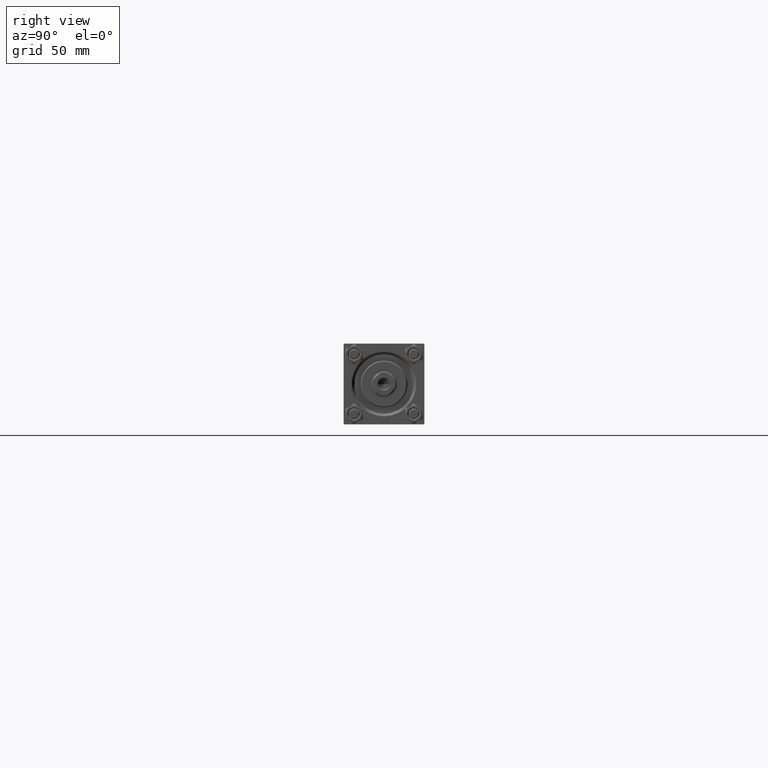
[diagram: clean part render]
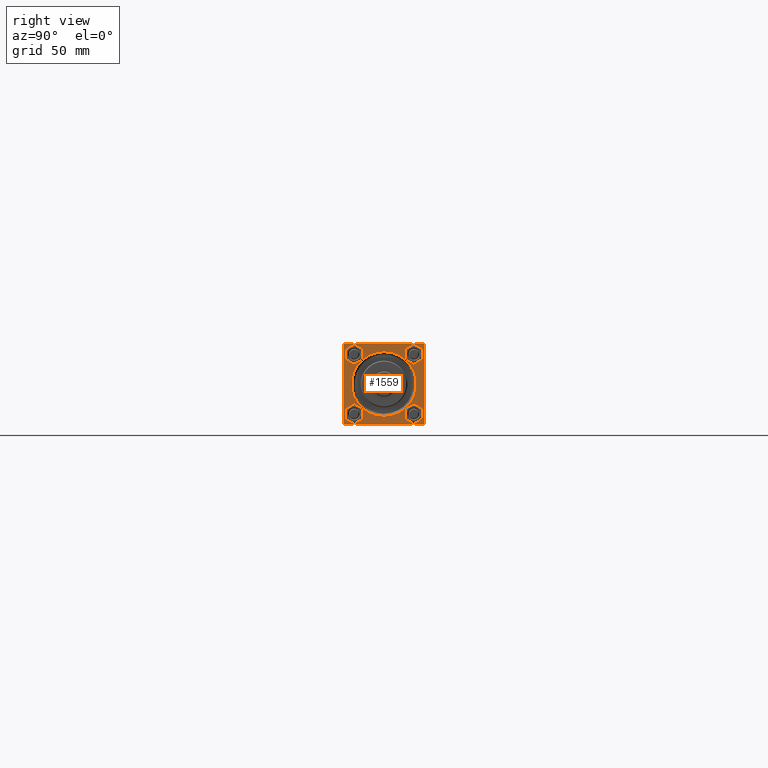
[diagram: same view with one face highlighted and labeled with its STEP entity id]
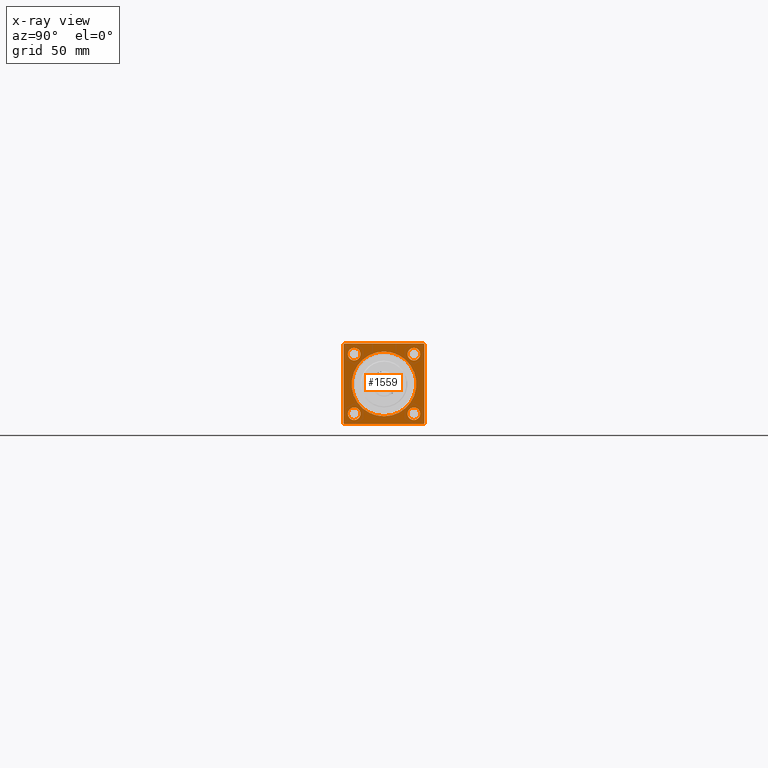
[diagram: x-ray of the same camera — body ghosted, the highlighted face saturated]
A machine part, right view. The second image highlights one B-rep face of the part: STEP entity #1559.
The next image is the same camera in x-ray: the body ghosted, the highlighted face saturated — about 0% of this face is hidden behind the body in this view.
In plain terms, the highlighted planar face has unit normal (-1, 0, 0).
Its self-contained STEP definition (entity closure, byte-faithful):
#128 = DIRECTION ( 'NONE',  ( 0.000000000000000000, 0.000000000000000000, 1.000000000000000000 ) ) ;
#431 = DIRECTION ( 'NONE',  ( -1.000000000000000000, 0.000000000000000000, -0.000000000000000000 ) ) ;
#651 = ORIENTED_EDGE ( 'NONE', *, *, #22390, .T. ) ;
#1027 = CARTESIAN_POINT ( 'NONE',  ( 353.0000000000000568, 22.50000000000000355, -21.99999999999998224 ) ) ;
#1155 = EDGE_LOOP ( 'NONE', ( #651, #26428 ) ) ;
#1559 = ADVANCED_FACE ( 'NONE', ( #8140, #27322, #7644, #7891, #23539, #19755 ), #23046, .F. ) ;
#1981 = DIRECTION ( 'NONE',  ( 0.000000000000000000, 0.000000000000000000, 1.000000000000000000 ) ) ;
#2197 = EDGE_CURVE ( 'NONE', #42808, #6161, #21858, .T. ) ;
#3133 = DIRECTION ( 'NONE',  ( -1.000000000000000000, 0.000000000000000000, -0.000000000000000000 ) ) ;
#3149 = DIRECTION ( 'NONE',  ( -1.000000000000000000, 0.000000000000000000, -0.000000000000000000 ) ) ;
#3613 = DIRECTION ( 'NONE',  ( -1.000000000000000000, 0.000000000000000000, -0.000000000000000000 ) ) ;
#3978 = CARTESIAN_POINT ( 'NONE',  ( 353.0000000000000568, 16.59999999999999787, -13.10000000000000142 ) ) ;
#4049 = DIRECTION ( 'NONE',  ( -1.000000000000000000, 0.000000000000000000, -0.000000000000000000 ) ) ;
#4375 = ORIENTED_EDGE ( 'NONE', *, *, #37485, .T. ) ;
#4582 = DIRECTION ( 'NONE',  ( 0.000000000000000000, 0.000000000000000000, 1.000000000000000000 ) ) ;
#5655 = EDGE_CURVE ( 'NONE', #17123, #39778, #26861, .T. ) ;
#6153 = CARTESIAN_POINT ( 'NONE',  ( 353.0000000000000568, 0.000000000000000000, 0.000000000000000000 ) ) ;
#6161 = VERTEX_POINT ( 'NONE', #13566 ) ;
#6673 = CARTESIAN_POINT ( 'NONE',  ( 353.0000000000000568, 16.59999999999999787, 16.60000000000000497 ) ) ;
#7227 = LINE ( 'NONE', #38001, #43647 ) ;
#7396 = CARTESIAN_POINT ( 'NONE',  ( 353.0000000000000568, 0.000000000000000000, 0.000000000000000000 ) ) ;
#7482 = VECTOR ( 'NONE', #29847, 1000.000000000000000 ) ;
#7644 = FACE_BOUND ( 'NONE', #9130, .T. ) ;
#7665 = VERTEX_POINT ( 'NONE', #29839 ) ;
#7891 = FACE_BOUND ( 'NONE', #18028, .T. ) ;
#7919 = CARTESIAN_POINT ( 'NONE',  ( 353.0000000000000568, -16.59999999999999076, -20.10000000000000853 ) ) ;
#8140 = FACE_BOUND ( 'NONE', #15865, .T. ) ;
#8462 = LINE ( 'NONE', #43762, #26999 ) ;
#8963 = AXIS2_PLACEMENT_3D ( 'NONE', #7396, #3613, #38666 ) ;
#9130 = EDGE_LOOP ( 'NONE', ( #26926, #27678 ) ) ;
#9339 = ORIENTED_EDGE ( 'NONE', *, *, #25533, .T. ) ;
#9359 = CIRCLE ( 'NONE', #37548, 3.500000000000003109 ) ;
#9876 = AXIS2_PLACEMENT_3D ( 'NONE', #38721, #19566, #128 ) ;
#9959 = EDGE_CURVE ( 'NONE', #13415, #37549, #48509, .T. ) ;
#11090 = AXIS2_PLACEMENT_3D ( 'NONE', #30794, #30058, #21985 ) ;
#11572 = EDGE_LOOP ( 'NONE', ( #20445, #9339 ) ) ;
#11727 = CARTESIAN_POINT ( 'NONE',  ( 353.0000000000000568, 16.59999999999999787, 16.60000000000000497 ) ) ;
#11914 = EDGE_CURVE ( 'NONE', #12851, #36817, #24497, .T. ) ;
#12438 = AXIS2_PLACEMENT_3D ( 'NONE', #14578, #44110, #1981 ) ;
#12851 = VERTEX_POINT ( 'NONE', #3978 ) ;
#13221 = EDGE_CURVE ( 'NONE', #23563, #45450, #8462, .T. ) ;
#13415 = VERTEX_POINT ( 'NONE', #42148 ) ;
#13497 = AXIS2_PLACEMENT_3D ( 'NONE', #34427, #3149, #37714 ) ;
#13566 = CARTESIAN_POINT ( 'NONE',  ( 353.0000000000000568, -22.49999999999999645, 21.99999999999987921 ) ) ;
#13731 = AXIS2_PLACEMENT_3D ( 'NONE', #6153, #21547, #36685 ) ;
#13838 = LINE ( 'NONE', #16880, #42899 ) ;
#13958 = CARTESIAN_POINT ( 'NONE',  ( 353.0000000000000568, 22.50000000000000355, -22.49999999999999645 ) ) ;
#14556 = DIRECTION ( 'NONE',  ( 0.000000000000000000, 0.000000000000000000, -1.000000000000000000 ) ) ;
#14578 = CARTESIAN_POINT ( 'NONE',  ( 353.0000000000000568, 16.59999999999999787, -16.60000000000000497 ) ) ;
#14771 = LINE ( 'NONE', #41995, #27563 ) ;
#15813 = DIRECTION ( 'NONE',  ( 0.000000000000000000, 0.000000000000000000, 1.000000000000000000 ) ) ;
#15823 = EDGE_CURVE ( 'NONE', #39778, #17123, #9359, .T. ) ;
#15865 = EDGE_LOOP ( 'NONE', ( #39252, #41787 ) ) ;
#16880 = CARTESIAN_POINT ( 'NONE',  ( 353.0000000000000568, 22.50000000000000355, -21.99999999999999645 ) ) ;
#17123 = VERTEX_POINT ( 'NONE', #39183 ) ;
#17226 = ORIENTED_EDGE ( 'NONE', *, *, #43627, .T. ) ;
#17266 = AXIS2_PLACEMENT_3D ( 'NONE', #34599, #27537, #4582 ) ;
#17456 = VERTEX_POINT ( 'NONE', #1027 ) ;
#18028 = EDGE_LOOP ( 'NONE', ( #46596, #42973 ) ) ;
#19344 = EDGE_CURVE ( 'NONE', #38595, #49448, #32834, .T. ) ;
#19546 = DIRECTION ( 'NONE',  ( -1.000000000000000000, 0.000000000000000000, -0.000000000000000000 ) ) ;
#19566 = DIRECTION ( 'NONE',  ( -1.000000000000000000, 0.000000000000000000, -0.000000000000000000 ) ) ;
#19755 = FACE_OUTER_BOUND ( 'NONE', #31276, .T. ) ;
#20281 = EDGE_CURVE ( 'NONE', #49448, #38595, #33666, .T. ) ;
#20445 = ORIENTED_EDGE ( 'NONE', *, *, #30519, .T. ) ;
#20668 = ORIENTED_EDGE ( 'NONE', *, *, #49245, .F. ) ;
#21547 = DIRECTION ( 'NONE',  ( -1.000000000000000000, 0.000000000000000000, -0.000000000000000000 ) ) ;
#21858 = LINE ( 'NONE', #49835, #49299 ) ;
#21985 = DIRECTION ( 'NONE',  ( 0.000000000000000000, 0.000000000000000000, 1.000000000000000000 ) ) ;
#22390 = EDGE_CURVE ( 'NONE', #36817, #12851, #37656, .T. ) ;
#22394 = CARTESIAN_POINT ( 'NONE',  ( 353.0000000000000568, 22.50000000000000355, 22.50000000000000355 ) ) ;
#23046 = PLANE ( 'NONE',  #8963 ) ;
#23240 = CARTESIAN_POINT ( 'NONE',  ( 353.0000000000000568, -16.59999999999999076, -16.60000000000000853 ) ) ;
#23361 = VERTEX_POINT ( 'NONE', #26373 ) ;
#23388 = CIRCLE ( 'NONE', #13731, 18.00000000000007105 ) ;
#23539 = FACE_BOUND ( 'NONE', #11572, .T. ) ;
#23563 = VERTEX_POINT ( 'NONE', #29350 ) ;
#23856 = DIRECTION ( 'NONE',  ( 0.000000000000000000, -0.7071067811865474617, 0.7071067811865474617 ) ) ;
#24305 = DIRECTION ( 'NONE',  ( 0.000000000000000000, 0.7071067811865033859, -0.7071067811865916486 ) ) ;
#24497 = CIRCLE ( 'NONE', #12438, 3.500000000000003109 ) ;
#25533 = EDGE_CURVE ( 'NONE', #38339, #39856, #42573, .T. ) ;
#25668 = LINE ( 'NONE', #22394, #27790 ) ;
#25897 = ORIENTED_EDGE ( 'NONE', *, *, #44117, .T. ) ;
#25934 = VECTOR ( 'NONE', #38586, 1000.000000000000000 ) ;
#26373 = CARTESIAN_POINT ( 'NONE',  ( 353.0000000000000568, -16.59999999999999076, 13.10000000000000320 ) ) ;
#26428 = ORIENTED_EDGE ( 'NONE', *, *, #11914, .T. ) ;
#26861 = CIRCLE ( 'NONE', #48608, 3.500000000000003109 ) ;
#26926 = ORIENTED_EDGE ( 'NONE', *, *, #5655, .T. ) ;
#26999 = VECTOR ( 'NONE', #23856, 1000.000000000000114 ) ;
#27106 = DIRECTION ( 'NONE',  ( 0.000000000000000000, 0.000000000000000000, 1.000000000000000000 ) ) ;
#27322 = FACE_BOUND ( 'NONE', #1155, .T. ) ;
#27537 = DIRECTION ( 'NONE',  ( -1.000000000000000000, 0.000000000000000000, -0.000000000000000000 ) ) ;
#27563 = VECTOR ( 'NONE', #49581, 1000.000000000000000 ) ;
#27678 = ORIENTED_EDGE ( 'NONE', *, *, #15823, .T. ) ;
#27790 = VECTOR ( 'NONE', #14556, 1000.000000000000000 ) ;
#29350 = CARTESIAN_POINT ( 'NONE',  ( 353.0000000000000568, 22.50000000000000355, 22.00000000000000355 ) ) ;
#29714 = CARTESIAN_POINT ( 'NONE',  ( 353.0000000000000568, -21.99999999999992539, 22.49999999999999289 ) ) ;
#29839 = CARTESIAN_POINT ( 'NONE',  ( 353.0000000000000568, -16.59999999999999076, 20.10000000000000853 ) ) ;
#29847 = DIRECTION ( 'NONE',  ( 0.000000000000000000, -1.000000000000000000, -7.709882115452476934E-17 ) ) ;
#30058 = DIRECTION ( 'NONE',  ( -1.000000000000000000, 0.000000000000000000, -0.000000000000000000 ) ) ;
#30386 = DIRECTION ( 'NONE',  ( 0.000000000000000000, 0.000000000000000000, 1.000000000000000000 ) ) ;
#30519 = EDGE_CURVE ( 'NONE', #39856, #38339, #23388, .T. ) ;
#30794 = CARTESIAN_POINT ( 'NONE',  ( 353.0000000000000568, -16.59999999999999076, -16.60000000000000853 ) ) ;
#31120 = CARTESIAN_POINT ( 'NONE',  ( 353.0000000000000568, 22.00000000000000355, 22.50000000000000355 ) ) ;
#31276 = EDGE_LOOP ( 'NONE', ( #25897, #4375, #42754, #37284, #20668, #44716, #17226, #40295 ) ) ;
#31279 = LINE ( 'NONE', #39084, #25934 ) ;
#32834 = CIRCLE ( 'NONE', #11090, 3.500000000000003109 ) ;
#33666 = CIRCLE ( 'NONE', #40113, 3.500000000000003109 ) ;
#34216 = DIRECTION ( 'NONE',  ( -0.000000000000000000, -0.7071067811865081598, -0.7071067811865867636 ) ) ;
#34427 = CARTESIAN_POINT ( 'NONE',  ( 353.0000000000000568, 16.59999999999999787, -16.60000000000000497 ) ) ;
#34599 = CARTESIAN_POINT ( 'NONE',  ( 353.0000000000000568, -16.59999999999999076, 16.60000000000000853 ) ) ;
#34874 = CIRCLE ( 'NONE', #9876, 3.500000000000003109 ) ;
#34993 = CARTESIAN_POINT ( 'NONE',  ( 353.0000000000000568, 0.000000000000000000, 0.000000000000000000 ) ) ;
#35088 = CARTESIAN_POINT ( 'NONE',  ( 353.0000000000000568, 16.59999999999999787, -20.10000000000000853 ) ) ;
#36143 = CARTESIAN_POINT ( 'NONE',  ( 353.0000000000000568, -22.49999999999999645, -21.99999999999986855 ) ) ;
#36194 = CARTESIAN_POINT ( 'NONE',  ( 353.0000000000000568, 16.59999999999999787, 20.10000000000000853 ) ) ;
#36685 = DIRECTION ( 'NONE',  ( 0.000000000000000000, 0.000000000000000000, 1.000000000000000000 ) ) ;
#36817 = VERTEX_POINT ( 'NONE', #35088 ) ;
#37044 = DIRECTION ( 'NONE',  ( -0.000000000000000000, 0.7071067811865474617, 0.7071067811865474617 ) ) ;
#37284 = ORIENTED_EDGE ( 'NONE', *, *, #39195, .T. ) ;
#37485 = EDGE_CURVE ( 'NONE', #46174, #37549, #7227, .T. ) ;
#37548 = AXIS2_PLACEMENT_3D ( 'NONE', #11727, #19546, #27106 ) ;
#37549 = VERTEX_POINT ( 'NONE', #49235 ) ;
#37656 = CIRCLE ( 'NONE', #13497, 3.500000000000003109 ) ;
#37714 = DIRECTION ( 'NONE',  ( 0.000000000000000000, 0.000000000000000000, 1.000000000000000000 ) ) ;
#38001 = CARTESIAN_POINT ( 'NONE',  ( 353.0000000000000568, -21.99999999999993960, -22.50000000000000000 ) ) ;
#38339 = VERTEX_POINT ( 'NONE', #47329 ) ;
#38586 = DIRECTION ( 'NONE',  ( 0.000000000000000000, -1.000000000000000000, -2.312964634635742957E-16 ) ) ;
#38595 = VERTEX_POINT ( 'NONE', #7919 ) ;
#38666 = DIRECTION ( 'NONE',  ( -0.000000000000000000, 0.000000000000000000, 1.000000000000000000 ) ) ;
#38721 = CARTESIAN_POINT ( 'NONE',  ( 353.0000000000000568, -16.59999999999999076, 16.60000000000000853 ) ) ;
#39008 = CIRCLE ( 'NONE', #17266, 3.500000000000003109 ) ;
#39084 = CARTESIAN_POINT ( 'NONE',  ( 353.0000000000000568, 22.50000000000000355, 22.50000000000000355 ) ) ;
#39183 = CARTESIAN_POINT ( 'NONE',  ( 353.0000000000000568, 16.59999999999999787, 13.10000000000000142 ) ) ;
#39195 = EDGE_CURVE ( 'NONE', #13415, #17456, #13838, .T. ) ;
#39252 = ORIENTED_EDGE ( 'NONE', *, *, #19344, .T. ) ;
#39720 = EDGE_CURVE ( 'NONE', #7665, #23361, #34874, .T. ) ;
#39778 = VERTEX_POINT ( 'NONE', #36194 ) ;
#39856 = VERTEX_POINT ( 'NONE', #45504 ) ;
#40113 = AXIS2_PLACEMENT_3D ( 'NONE', #23240, #4049, #49720 ) ;
#40295 = ORIENTED_EDGE ( 'NONE', *, *, #2197, .T. ) ;
#41787 = ORIENTED_EDGE ( 'NONE', *, *, #20281, .T. ) ;
#41995 = CARTESIAN_POINT ( 'NONE',  ( 353.0000000000000568, -22.49999999999999645, 22.49999999999999289 ) ) ;
#42148 = CARTESIAN_POINT ( 'NONE',  ( 353.0000000000000568, 22.00000000000000355, -22.49999999999999645 ) ) ;
#42573 = CIRCLE ( 'NONE', #47410, 18.00000000000007105 ) ;
#42754 = ORIENTED_EDGE ( 'NONE', *, *, #9959, .F. ) ;
#42808 = VERTEX_POINT ( 'NONE', #29714 ) ;
#42899 = VECTOR ( 'NONE', #37044, 1000.000000000000114 ) ;
#42973 = ORIENTED_EDGE ( 'NONE', *, *, #39720, .T. ) ;
#43627 = EDGE_CURVE ( 'NONE', #45450, #42808, #31279, .T. ) ;
#43647 = VECTOR ( 'NONE', #24305, 1000.000000000000114 ) ;
#43762 = CARTESIAN_POINT ( 'NONE',  ( 353.0000000000000568, 22.00000000000000355, 22.50000000000000355 ) ) ;
#44110 = DIRECTION ( 'NONE',  ( -1.000000000000000000, 0.000000000000000000, -0.000000000000000000 ) ) ;
#44117 = EDGE_CURVE ( 'NONE', #6161, #46174, #14771, .T. ) ;
#44716 = ORIENTED_EDGE ( 'NONE', *, *, #13221, .T. ) ;
#45450 = VERTEX_POINT ( 'NONE', #31120 ) ;
#45504 = CARTESIAN_POINT ( 'NONE',  ( 353.0000000000000568, 0.000000000000000000, -18.00000000000007105 ) ) ;
#46084 = CARTESIAN_POINT ( 'NONE',  ( 353.0000000000000568, -16.59999999999999076, -13.10000000000000320 ) ) ;
#46174 = VERTEX_POINT ( 'NONE', #36143 ) ;
#46596 = ORIENTED_EDGE ( 'NONE', *, *, #48936, .T. ) ;
#47329 = CARTESIAN_POINT ( 'NONE',  ( 353.0000000000000568, 2.204364238465244894E-15, 18.00000000000007105 ) ) ;
#47410 = AXIS2_PLACEMENT_3D ( 'NONE', #34993, #431, #15813 ) ;
#48509 = LINE ( 'NONE', #13958, #7482 ) ;
#48608 = AXIS2_PLACEMENT_3D ( 'NONE', #6673, #3133, #30386 ) ;
#48936 = EDGE_CURVE ( 'NONE', #23361, #7665, #39008, .T. ) ;
#49235 = CARTESIAN_POINT ( 'NONE',  ( 353.0000000000000568, -21.99999999999992539, -22.50000000000000000 ) ) ;
#49245 = EDGE_CURVE ( 'NONE', #23563, #17456, #25668, .T. ) ;
#49299 = VECTOR ( 'NONE', #34216, 1000.000000000000000 ) ;
#49448 = VERTEX_POINT ( 'NONE', #46084 ) ;
#49581 = DIRECTION ( 'NONE',  ( 0.000000000000000000, 0.000000000000000000, -1.000000000000000000 ) ) ;
#49720 = DIRECTION ( 'NONE',  ( 0.000000000000000000, 0.000000000000000000, 1.000000000000000000 ) ) ;
#49835 = CARTESIAN_POINT ( 'NONE',  ( 353.0000000000000568, -22.49999999999999645, 21.99999999999987921 ) ) ;